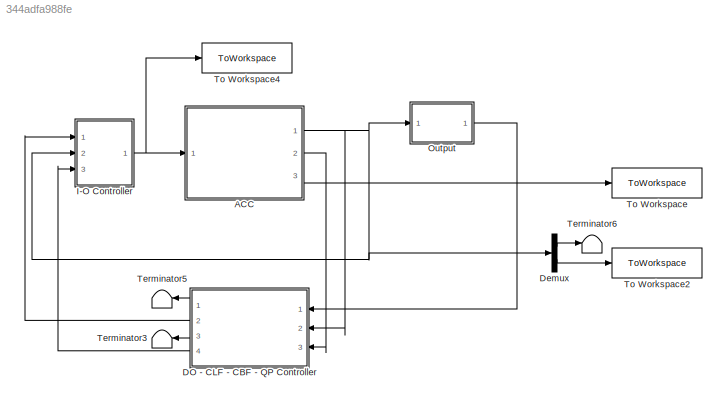
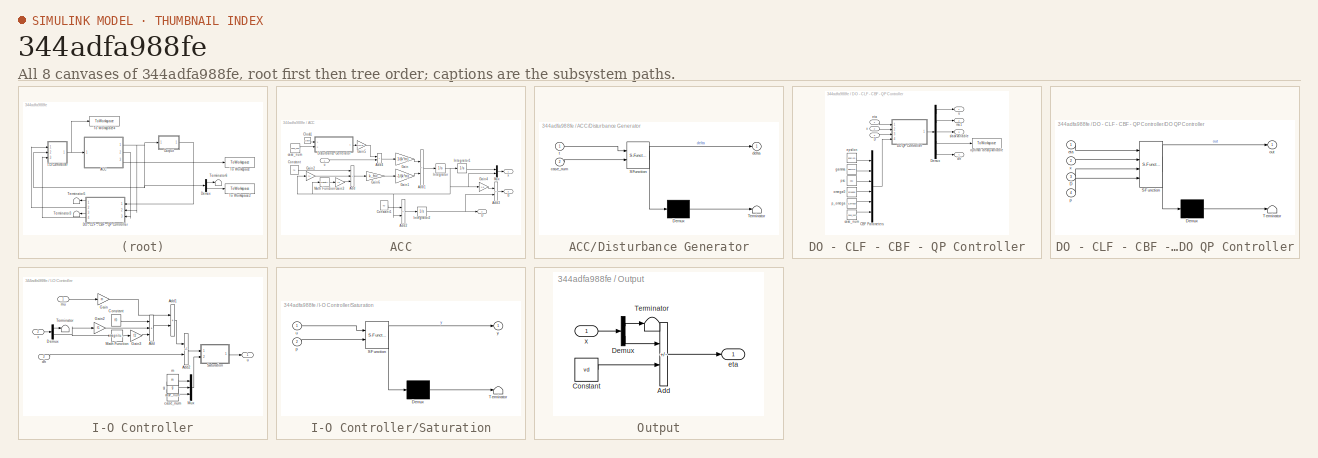
[diagram: thumbnail index - all 8 canvases of the model, root first then tree order]
MODEL slx_344adfa988fe
KIND model
CONFIG AbsTol = auto
CONFIG EnableMultiTasking = off
CONFIG FixedStep = 0.001
CONFIG InitFcn = tic;\ndisp('Simulation started...');
CONFIG MaxStep = auto
CONFIG MinStep = auto
CONFIG RelTol = 1e-3
CONFIG SampleTimeConstraint = Unconstrained
CONFIG Solver = FixedStepAuto
CONFIG SolverName = FixedStepAuto
CONFIG StartTime = 0.0
CONFIG StopFcn = elapsedTime_DO = toc; % Stop timer when simulation ends\nfprintf('Simulation Time: %.6f seconds\n', elapsedTime_DO);\n\n% out_DO = out;
CONFIG StopTime = Tsim
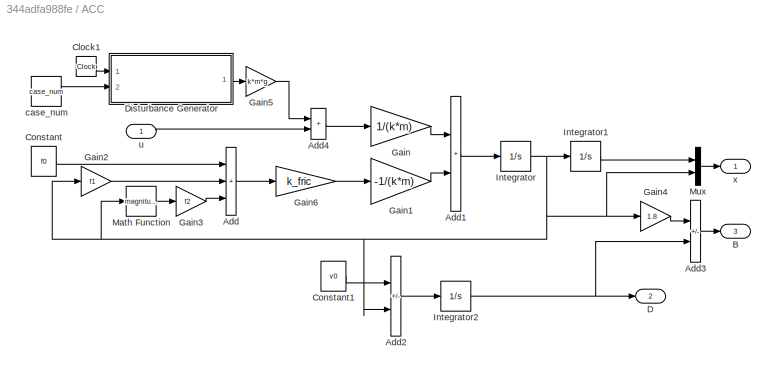
BLOCK [SubSystem] ACC
  Ports = [1, 3]
BLOCK [Sum] ACC/Add
  IconShape = rectangular
  Inputs = +++
  Ports = [3, 1]
BLOCK [Sum] ACC/Add1
  IconShape = rectangular
  Ports = [2, 1]
BLOCK [Sum] ACC/Add2
  IconShape = rectangular
  Inputs = +-
  Ports = [2, 1]
BLOCK [Sum] ACC/Add3
  IconShape = rectangular
  Inputs = -+
  Ports = [2, 1]
BLOCK [Sum] ACC/Add4
  IconShape = rectangular
  Ports = [2, 1]
BLOCK [Outport] ACC/B
  Port = 3
  PortDimensions = 1
BLOCK [Clock] ACC/Clock1
BLOCK [Constant] ACC/Constant
  Value = f0
BLOCK [Constant] ACC/Constant1
  Value = v0
BLOCK [Outport] ACC/D
  Port = 2
  PortDimensions = 1
BLOCK [SubSystem] ACC/Disturbance Generator
  ErrorFcn = Stateflow.Translate.translate
  PermitHierarchicalResolution = ExplicitOnly
  Ports = [2, 1]
  SFBlockType = MATLAB Function
  TreatAsAtomicUnit = on
BLOCK [Demux] ACC/Disturbance Generator/ Demux 
  Outputs = 1
  Ports = [1, 1]
BLOCK [S-Function] ACC/Disturbance Generator/ SFunction 
  EnableBusSupport = off
  FunctionName = sf_sfun
  PortCounts = [2 2]
  Ports = [2, 2]
  SFcnIsStateOwnerBlock = off
  SFunctionDeploymentMode = off
  Tag = Stateflow S-Function Receding_DO_CBF_ACC 3
BLOCK [Terminator] ACC/Disturbance Generator/ Terminator 
BLOCK [Inport] ACC/Disturbance Generator/case_num
  Port = 2
BLOCK [Outport] ACC/Disturbance Generator/delta
BLOCK [Inport] ACC/Disturbance Generator/t
BLOCK [Gain] ACC/Gain
  Gain = 1/(k*m)
BLOCK [Gain] ACC/Gain1
  Gain = -1/(k*m)
BLOCK [Gain] ACC/Gain2
  Gain = f1
BLOCK [Gain] ACC/Gain3
  Gain = f2
BLOCK [Gain] ACC/Gain4
  Gain = 1.8
BLOCK [Gain] ACC/Gain5
  Gain = k*m*g
BLOCK [Gain] ACC/Gain6
  Gain = k_fric
BLOCK [Integrator] ACC/Integrator
  InitialCondition = x20
  Ports = [1, 1]
BLOCK [Integrator] ACC/Integrator1
  InitialCondition = x10
  Ports = [1, 1]
BLOCK [Integrator] ACC/Integrator2
  InitialCondition = D0
  Ports = [1, 1]
BLOCK [Math] ACC/Math Function
  Operator = magnitude^2
  Ports = [1, 1]
BLOCK [Mux] ACC/Mux
  DisplayOption = bar
  Inputs = 2
  Ports = [2, 1]
BLOCK [Constant] ACC/case_num
  Value = case_num
BLOCK [Inport] ACC/u
  PortDimensions = 1
BLOCK [Outport] ACC/x
  PortDimensions = 2
BLOCK [SubSystem] DO - CLF - CBF - QP Controller
  Ports = [3, 4]
BLOCK [Mux] DO - CLF - CBF - QP Controller/CBF Parameters
  DisplayOption = bar
  Inputs = 6
  Ports = [6, 1]
BLOCK [Inport] DO - CLF - CBF - QP Controller/D
  Port = 3
  PortDimensions = 1
BLOCK [SubSystem] DO - CLF - CBF - QP Controller/DO QP Controller
  ErrorFcn = Stateflow.Translate.translate
  PermitHierarchicalResolution = ExplicitOnly
  Ports = [4, 1]
  SFBlockType = MATLAB Function
  SystemSampleTime = 0.001
  TreatAsAtomicUnit = on
BLOCK [Demux] DO - CLF - CBF - QP Controller/DO QP Controller/ Demux 
  Outputs = 1
  Ports = [1, 1]
BLOCK [S-Function] DO - CLF - CBF - QP Controller/DO QP Controller/ SFunction 
  EnableBusSupport = off
  FunctionName = sf_sfun
  PortCounts = [4 2]
  Ports = [4, 2]
  SFcnIsStateOwnerBlock = off
  SFunctionDeploymentMode = off
  Tag = Stateflow S-Function Receding_DO_CBF_ACC 5
BLOCK [Terminator] DO - CLF - CBF - QP Controller/DO QP Controller/ Terminator 
BLOCK [Inport] DO - CLF - CBF - QP Controller/DO QP Controller/D
  Port = 3
BLOCK [Inport] DO - CLF - CBF - QP Controller/DO QP Controller/eta
BLOCK [Outport] DO - CLF - CBF - QP Controller/DO QP Controller/out
BLOCK [Inport] DO - CLF - CBF - QP Controller/DO QP Controller/p
  Port = 4
BLOCK [Inport] DO - CLF - CBF - QP Controller/DO QP Controller/x
  Port = 2
BLOCK [Demux] DO - CLF - CBF - QP Controller/Demux
  Outputs = 5
  Ports = [1, 5]
BLOCK [Constant] DO - CLF - CBF - QP Controller/case_num
  Value = case_num
BLOCK [Outport] DO - CLF - CBF - QP Controller/dh
  Port = 4
  PortDimensions = 1
BLOCK [Constant] DO - CLF - CBF - QP Controller/epsilon
  Value = epsilon
BLOCK [Inport] DO - CLF - CBF - QP Controller/eta
  PortDimensions = 1
BLOCK [Constant] DO - CLF - CBF - QP Controller/gamma
  Value = gamma
BLOCK [Outport] DO - CLF - CBF - QP Controller/mu1
  Port = 2
  PortDimensions = 1
BLOCK [Constant] DO - CLF - CBF - QP Controller/omega0
  Value = omega0
BLOCK [ToWorkspace] DO - CLF - CBF - QP Controller/optimal decay variable
  FixptAsFi = on
  MaxDataPoints = inf
  Ports = [1]
  SampleTime = -1
  VariableName = omega
BLOCK [Constant] DO - CLF - CBF - QP Controller/p_omega
  Value = p_omega
BLOCK [Constant] DO - CLF - CBF - QP Controller/psc
  Value = psc
BLOCK [Outport] DO - CLF - CBF - QP Controller/slack variable
  Port = 3
  PortDimensions = 1
BLOCK [Outport] DO - CLF - CBF - QP Controller/u
  PortDimensions = 1
BLOCK [Inport] DO - CLF - CBF - QP Controller/x
  Port = 2
  PortDimensions = 2
BLOCK [Demux] Demux
  Outputs = 2
  Ports = [1, 2]
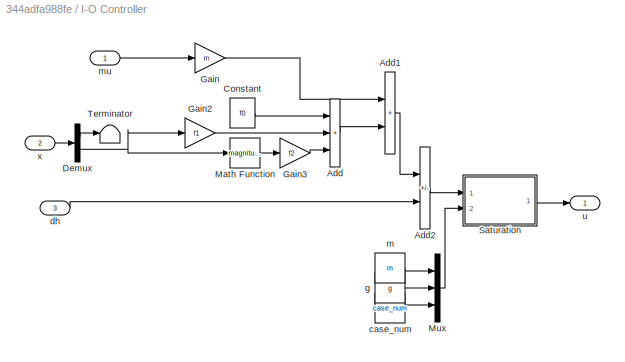
BLOCK [SubSystem] I-O Controller
  Ports = [3, 1]
BLOCK [Sum] I-O Controller/Add
  IconShape = rectangular
  Inputs = +++
  Ports = [3, 1]
BLOCK [Sum] I-O Controller/Add1
  IconShape = rectangular
  Ports = [2, 1]
BLOCK [Sum] I-O Controller/Add2
  IconShape = rectangular
  Inputs = +-
  Ports = [2, 1]
BLOCK [Constant] I-O Controller/Constant
  Value = f0
BLOCK [Demux] I-O Controller/Demux
  Outputs = 2
  Ports = [1, 2]
BLOCK [Gain] I-O Controller/Gain
  Gain = m
BLOCK [Gain] I-O Controller/Gain2
  Gain = f1
BLOCK [Gain] I-O Controller/Gain3
  Gain = f2
BLOCK [Math] I-O Controller/Math Function
  Operator = magnitude^2
  Ports = [1, 1]
BLOCK [Mux] I-O Controller/Mux
  DisplayOption = bar
  Inputs = 3
  Ports = [3, 1]
BLOCK [SubSystem] I-O Controller/Saturation
  ErrorFcn = Stateflow.Translate.translate
  PermitHierarchicalResolution = ExplicitOnly
  Ports = [2, 1]
  SFBlockType = MATLAB Function
  TreatAsAtomicUnit = on
BLOCK [Demux] I-O Controller/Saturation/ Demux 
  Outputs = 1
  Ports = [1, 1]
BLOCK [S-Function] I-O Controller/Saturation/ SFunction 
  EnableBusSupport = off
  FunctionName = sf_sfun
  PortCounts = [2 2]
  Ports = [2, 2]
  SFcnIsStateOwnerBlock = off
  SFunctionDeploymentMode = off
  Tag = Stateflow S-Function Receding_DO_CBF_ACC 2
BLOCK [Terminator] I-O Controller/Saturation/ Terminator 
BLOCK [Inport] I-O Controller/Saturation/p
  Port = 2
BLOCK [Inport] I-O Controller/Saturation/u
BLOCK [Outport] I-O Controller/Saturation/y
BLOCK [Terminator] I-O Controller/Terminator
BLOCK [Constant] I-O Controller/case_num
  Value = case_num
BLOCK [Inport] I-O Controller/dh
  Port = 3
BLOCK [Constant] I-O Controller/g
  Value = g
BLOCK [Constant] I-O Controller/m
  Value = m
BLOCK [Inport] I-O Controller/mu
BLOCK [Outport] I-O Controller/u
  PortDimensions = 1
BLOCK [Inport] I-O Controller/x
  Port = 2
  PortDimensions = 2
BLOCK [SubSystem] Output
  Ports = [1, 1]
BLOCK [Sum] Output/Add
  IconShape = rectangular
  Inputs = +-
  Ports = [2, 1]
BLOCK [Constant] Output/Constant
  Value = vd
BLOCK [Demux] Output/Demux
  Outputs = 2
  Ports = [1, 2]
BLOCK [Terminator] Output/Terminator
BLOCK [Outport] Output/eta
  PortDimensions = 1
BLOCK [Inport] Output/x
  PortDimensions = 2
BLOCK [Terminator] Terminator3
BLOCK [Terminator] Terminator5
BLOCK [Terminator] Terminator6
BLOCK [ToWorkspace] To Workspace
  FixptAsFi = on
  MaxDataPoints = inf
  Ports = [1]
  SampleTime = -1
  VariableName = h
BLOCK [ToWorkspace] To Workspace2
  FixptAsFi = on
  MaxDataPoints = inf
  Ports = [1]
  SampleTime = -1
  VariableName = x2
BLOCK [ToWorkspace] To Workspace4
  FixptAsFi = on
  MaxDataPoints = inf
  Ports = [1]
  SampleTime = -1
  VariableName = u
LINE ACC/Add1:1 -> ACC/Integrator:1
LINE ACC/Add2:1 -> ACC/Integrator2:1
LINE ACC/Add3:1 -> ACC/B:1
LINE ACC/Add4:1 -> ACC/Gain:1
LINE ACC/Add:1 -> ACC/Gain6:1
LINE ACC/Clock1:1 -> ACC/Disturbance Generator:1
LINE ACC/Constant1:1 -> ACC/Add2:1
LINE ACC/Constant:1 -> ACC/Add:1
LINE ACC/Disturbance Generator:1 -> ACC/Gain5:1
LINE ACC/Gain1:1 -> ACC/Add1:2
LINE ACC/Gain2:1 -> ACC/Add:2
LINE ACC/Gain3:1 -> ACC/Add:3
LINE ACC/Gain4:1 -> ACC/Add3:1
LINE ACC/Gain5:1 -> ACC/Add4:1
LINE ACC/Gain6:1 -> ACC/Gain1:1
LINE ACC/Gain:1 -> ACC/Add1:1
LINE ACC/Integrator1:1 -> ACC/Mux:1
NET ACC/Integrator2:1 -> ACC/Add3:2, ACC/D:1
NET ACC/Integrator:1 -> ACC/Add2:2, ACC/Gain2:1, ACC/Gain4:1, ACC/Integrator1:1, ACC/Math Function:1, ACC/Mux:2
LINE ACC/Math Function:1 -> ACC/Gain3:1
LINE ACC/Mux:1 -> ACC/x:1
LINE ACC/case_num:1 -> ACC/Disturbance Generator:2
LINE ACC/u:1 -> ACC/Add4:2
NET ACC:1 -> DO - CLF - CBF - QP Controller:2, Demux:1, I-O Controller:2, Output:1
LINE ACC:2 -> DO - CLF - CBF - QP Controller:3
LINE ACC:3 -> To Workspace:1
LINE DO - CLF - CBF - QP Controller/CBF Parameters:1 -> DO - CLF - CBF - QP Controller/DO QP Controller:4
LINE DO - CLF - CBF - QP Controller/D:1 -> DO - CLF - CBF - QP Controller/DO QP Controller:3
LINE DO - CLF - CBF - QP Controller/DO QP Controller:1 -> DO - CLF - CBF - QP Controller/Demux:1
LINE DO - CLF - CBF - QP Controller/Demux:1 -> DO - CLF - CBF - QP Controller/u:1
LINE DO - CLF - CBF - QP Controller/Demux:2 -> DO - CLF - CBF - QP Controller/mu1:1
LINE DO - CLF - CBF - QP Controller/Demux:3 -> DO - CLF - CBF - QP Controller/slack variable:1
LINE DO - CLF - CBF - QP Controller/Demux:4 -> DO - CLF - CBF - QP Controller/optimal decay variable:1
LINE DO - CLF - CBF - QP Controller/Demux:5 -> DO - CLF - CBF - QP Controller/dh:1
LINE DO - CLF - CBF - QP Controller/case_num:1 -> DO - CLF - CBF - QP Controller/CBF Parameters:6
LINE DO - CLF - CBF - QP Controller/epsilon:1 -> DO - CLF - CBF - QP Controller/CBF Parameters:1
LINE DO - CLF - CBF - QP Controller/eta:1 -> DO - CLF - CBF - QP Controller/DO QP Controller:1
LINE DO - CLF - CBF - QP Controller/gamma:1 -> DO - CLF - CBF - QP Controller/CBF Parameters:2
LINE DO - CLF - CBF - QP Controller/omega0:1 -> DO - CLF - CBF - QP Controller/CBF Parameters:4
LINE DO - CLF - CBF - QP Controller/p_omega:1 -> DO - CLF - CBF - QP Controller/CBF Parameters:5
LINE DO - CLF - CBF - QP Controller/psc:1 -> DO - CLF - CBF - QP Controller/CBF Parameters:3
LINE DO - CLF - CBF - QP Controller/x:1 -> DO - CLF - CBF - QP Controller/DO QP Controller:2
LINE DO - CLF - CBF - QP Controller:1 -> Terminator5:1
LINE DO - CLF - CBF - QP Controller:2 -> I-O Controller:1
LINE DO - CLF - CBF - QP Controller:3 -> Terminator3:1
LINE DO - CLF - CBF - QP Controller:4 -> I-O Controller:3
LINE Demux:1 -> Terminator6:1
LINE Demux:2 -> To Workspace2:1
LINE I-O Controller/Add1:1 -> I-O Controller/Add2:1
LINE I-O Controller/Add2:1 -> I-O Controller/Saturation:1
LINE I-O Controller/Add:1 -> I-O Controller/Add1:2
LINE I-O Controller/Constant:1 -> I-O Controller/Add:1
LINE I-O Controller/Demux:1 -> I-O Controller/Terminator:1
NET I-O Controller/Demux:2 -> I-O Controller/Gain2:1, I-O Controller/Math Function:1
LINE I-O Controller/Gain2:1 -> I-O Controller/Add:2
LINE I-O Controller/Gain3:1 -> I-O Controller/Add:3
LINE I-O Controller/Gain:1 -> I-O Controller/Add1:1
LINE I-O Controller/Math Function:1 -> I-O Controller/Gain3:1
LINE I-O Controller/Mux:1 -> I-O Controller/Saturation:2
LINE I-O Controller/Saturation:1 -> I-O Controller/u:1
LINE I-O Controller/case_num:1 -> I-O Controller/Mux:3
LINE I-O Controller/dh:1 -> I-O Controller/Add2:2
LINE I-O Controller/g:1 -> I-O Controller/Mux:2
LINE I-O Controller/m:1 -> I-O Controller/Mux:1
LINE I-O Controller/mu:1 -> I-O Controller/Gain:1
LINE I-O Controller/x:1 -> I-O Controller/Demux:1
NET I-O Controller:1 -> ACC:1, To Workspace4:1
LINE Output/Add:1 -> Output/eta:1
LINE Output/Constant:1 -> Output/Add:2
LINE Output/Demux:1 -> Output/Terminator:1
LINE Output/Demux:2 -> Output/Add:1
LINE Output/x:1 -> Output/Demux:1
LINE Output:1 -> DO - CLF - CBF - QP Controller:1
note: NET lines group one-source signal fan-out (src -> all destinations, sorted); 1:1 wires keep LINE
CHART I-O Controller/Saturation states=1 transitions=1
  STATE_LABEL 'eML_blk_kernel()'
  STATE_LABEL 'SCRIPT:\nfunction y = fcn(u, p)\n\nm = p(1);\ng = p(2);\ncase_num = p(3);\n\nif case_num == 1 || case_num == 2\n    y = u;\nelse\n    if u >= 0.3*m*g\n        y = 0.3*m*g;\n    elseif u <= -0.3*m*g\n        y = -0.3*m*g;\n    else\n        y = u;\n    end\nend\n\nend'
CHART ACC/Disturbance Generator states=1 transitions=1
  STATE_LABEL 'eML_blk_kernel()'
  STATE_LABEL 'SCRIPT:\nfunction delta = fcn(t, case_num)\n\nif case_num == 1\n    delta = 0.16*cos(2*pi*t/20) + 0.14*sin(2*pi*t/10 + pi/3);\nelseif case_num == 2\n    delta = 0.16*cos(2*pi*t/20) + 0.14*sin(2*pi*t/10 + pi/3);\nelse\n    % delta = 0.18*cos(2*pi*t/20) + 0.14*sin(2*pi*t/10 - pi/8);\n    delta = -(0.12*cos(2*pi*t/20) + 0.08*sin(2*pi*t/10 + pi/3));\nend\n'
CHART DO - CLF - CBF - QP Controller/DO QP Controller states=1 transitions=1
  STATE_LABEL 'eML_blk_kernel()'
  STATE_LABEL "SCRIPT:\nfunction out = DO_QP_Controller(eta, x, D, p)\ncoder.extrinsic('quadprog');\nout = zeros(5,1);\n\npersistent dh x0 x_hat0 u_qp\n\nif isempty(dh),     dh     = 0; end\nif isempty(x0),     x0     = [0; 20; 100]; end\nif isempty(x_hat0), x_hat0 = [0; 0; 0]; end\nif isempty(u_qp),   u_qp   = 0; end\n\ncase_num = p(6);\nif case_num == 1 || case_num == 2\n    mode = 1;\nelse \n    mode = 2;\nend\n\nx2 = x(2); \n\n%...<+2439ch>"
